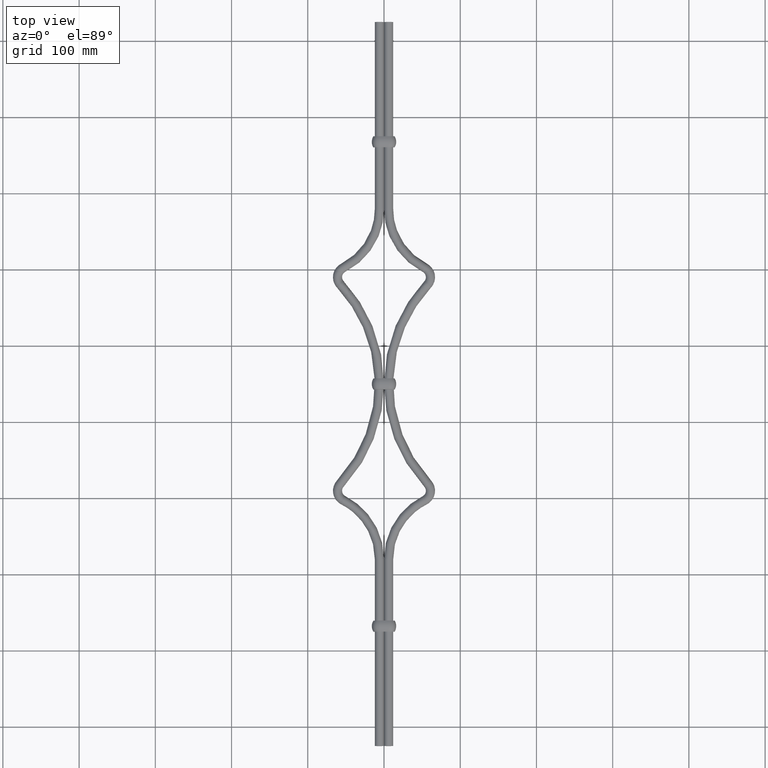
[diagram: clean part render]
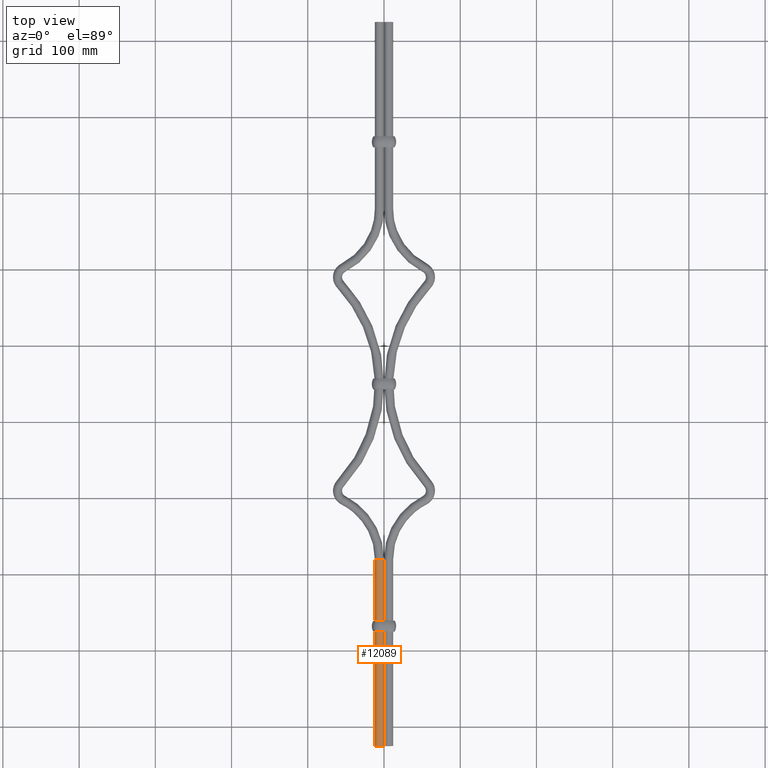
[diagram: same view with one face highlighted and labeled with its STEP entity id]
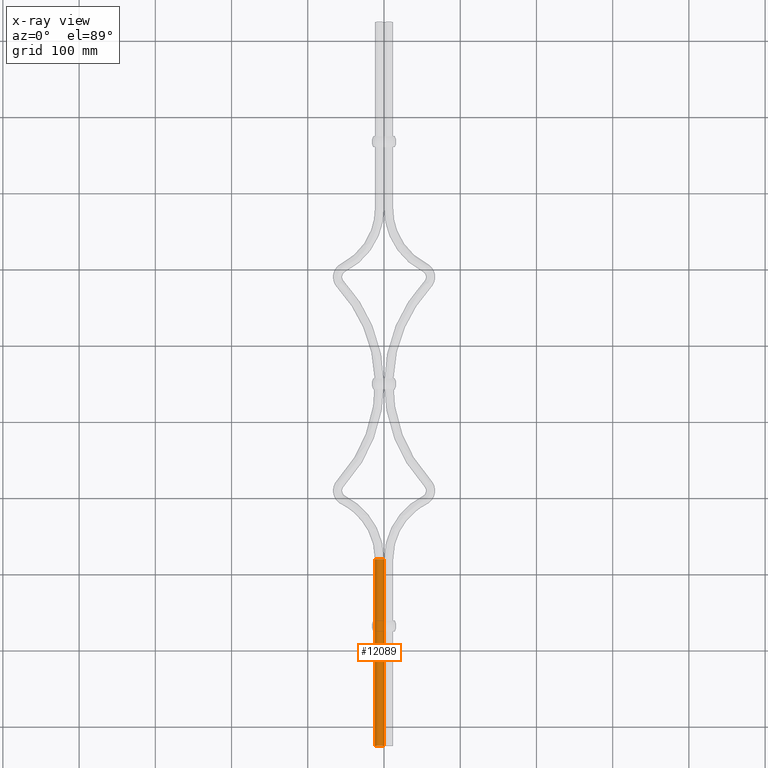
[diagram: x-ray of the same camera — body ghosted, the highlighted face saturated]
A machine part, top view. The second image highlights one B-rep face of the part: STEP entity #12089.
The next image is the same camera in x-ray: the body ghosted, the highlighted face saturated — about 0% of this face is hidden behind the body in this view.
In plain terms, the highlighted cylindrical surface (edge-blend (fillet) strip) has radius 6 mm, axis along (0, -1, -0).
Its self-contained STEP definition (entity closure, byte-faithful):
#420 = CARTESIAN_POINT ( 'NONE',  ( -6.000000000000005300, 219.9999999991717900, 0.0000000000000000000 ) ) ;
#620 = AXIS2_PLACEMENT_3D ( 'NONE', #420, #9606, #1764 ) ;
#1261 = ORIENTED_EDGE ( 'NONE', *, *, #15098, .T. ) ;
#1764 = DIRECTION ( 'NONE',  ( 1.000000000000000000, 0.0000000000000000000, 0.0000000000000000000 ) ) ;
#2206 = CARTESIAN_POINT ( 'NONE',  ( -12.00000000000000000, -25.00000000000000000, 0.0000000000000000000 ) ) ;
#3223 = CIRCLE ( 'NONE', #620, 6.000000000000000900 ) ;
#3832 = VERTEX_POINT ( 'NONE', #13510 ) ;
#4120 = LINE ( 'NONE', #6211, #14523 ) ;
#4250 = ORIENTED_EDGE ( 'NONE', *, *, #12903, .F. ) ;
#4843 = VERTEX_POINT ( 'NONE', #6049 ) ;
#5579 = CARTESIAN_POINT ( 'NONE',  ( -6.000000000000005300, 219.9999999991717900, 0.0000000000000000000 ) ) ;
#5981 = LINE ( 'NONE', #9106, #9037 ) ;
#6049 = CARTESIAN_POINT ( 'NONE',  ( -12.00000000000000700, 219.9999999991717900, 0.0000000000000000000 ) ) ;
#6090 = EDGE_CURVE ( 'NONE', #3832, #4843, #3223, .T. ) ;
#6211 = CARTESIAN_POINT ( 'NONE',  ( -4.336808689942017700E-015, 219.9999999991717900, -7.347880794884120700E-016 ) ) ;
#6266 = AXIS2_PLACEMENT_3D ( 'NONE', #6526, #15624, #7820 ) ;
#6381 = FACE_OUTER_BOUND ( 'NONE', #13217, .T. ) ;
#6526 = CARTESIAN_POINT ( 'NONE',  ( -5.999999999999998200, -25.00000000000000000, 0.0000000000000000000 ) ) ;
#7820 = DIRECTION ( 'NONE',  ( 1.000000000000000000, 0.0000000000000000000, 0.0000000000000000000 ) ) ;
#8587 = VERTEX_POINT ( 'NONE', #13177 ) ;
#8734 = ORIENTED_EDGE ( 'NONE', *, *, #6090, .T. ) ;
#9037 = VECTOR ( 'NONE', #10419, 1000.000000000000000 ) ;
#9106 = CARTESIAN_POINT ( 'NONE',  ( -12.00000000000000700, 219.9999999991717900, 0.0000000000000000000 ) ) ;
#9505 = DIRECTION ( 'NONE',  ( -1.000000000000000000, 0.0000000000000000000, 0.0000000000000000000 ) ) ;
#9606 = DIRECTION ( 'NONE',  ( 2.832201593431626600E-017, -1.000000000000000000, -0.0000000000000000000 ) ) ;
#9806 = EDGE_CURVE ( 'NONE', #8587, #16057, #14969, .T. ) ;
#10419 = DIRECTION ( 'NONE',  ( 2.832201593441096000E-017, -1.000000000000000000, -0.0000000000000000000 ) ) ;
#10825 = DIRECTION ( 'NONE',  ( 2.832201593441096000E-017, -1.000000000000000000, -0.0000000000000000000 ) ) ;
#11393 = DIRECTION ( 'NONE',  ( 2.832201593441096000E-017, -1.000000000000000000, -0.0000000000000000000 ) ) ;
#12089 = ADVANCED_FACE ( 'NONE', ( #6381 ), #16324, .T. ) ;
#12221 = ORIENTED_EDGE ( 'NONE', *, *, #9806, .F. ) ;
#12903 = EDGE_CURVE ( 'NONE', #3832, #8587, #4120, .T. ) ;
#13177 = CARTESIAN_POINT ( 'NONE',  ( 3.469446951953614200E-015, -25.00000000000000000, -7.347880794884124700E-016 ) ) ;
#13217 = EDGE_LOOP ( 'NONE', ( #4250, #8734, #1261, #12221 ) ) ;
#13510 = CARTESIAN_POINT ( 'NONE',  ( -4.336808689942017700E-015, 219.9999999991717900, -7.347880794884120700E-016 ) ) ;
#13684 = AXIS2_PLACEMENT_3D ( 'NONE', #5579, #10825, #9505 ) ;
#14523 = VECTOR ( 'NONE', #11393, 1000.000000000000000 ) ;
#14969 = CIRCLE ( 'NONE', #6266, 6.000000000000000900 ) ;
#15098 = EDGE_CURVE ( 'NONE', #4843, #16057, #5981, .T. ) ;
#15624 = DIRECTION ( 'NONE',  ( 2.832201593431626600E-017, -1.000000000000000000, -0.0000000000000000000 ) ) ;
#16057 = VERTEX_POINT ( 'NONE', #2206 ) ;
#16324 = CYLINDRICAL_SURFACE ( 'NONE', #13684, 6.000000000000001800 ) ;